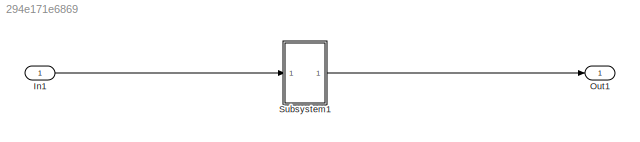
MODEL slx_294e171e6869
KIND model
CONFIG AbsTol = auto
CONFIG EnableMultiTasking = off
CONFIG FixedStep = auto
CONFIG MaxStep = auto
CONFIG MinStep = auto
CONFIG RelTol = 1e-3
CONFIG SampleTimeConstraint = Unconstrained
CONFIG Solver = FixedStepDiscrete
CONFIG SolverName = FixedStepDiscrete
CONFIG StartTime = 0.0
CONFIG StopTime = 10.0
BLOCK [Inport] In1
  OutDataTypeStr = uint8
BLOCK [Outport] Out1
  OutDataTypeStr = uint32
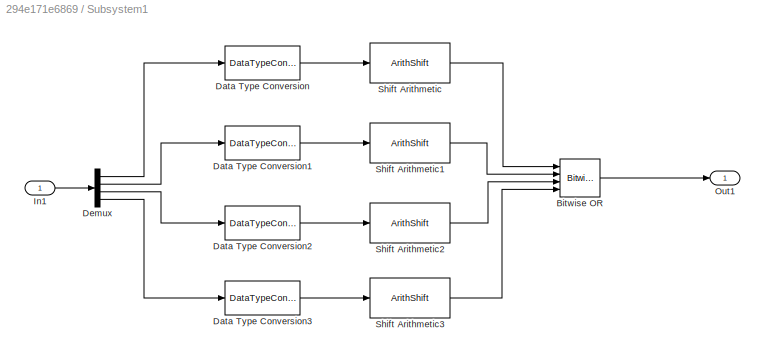
BLOCK [SubSystem] Subsystem1
  Ports = [1, 1]
  RequestExecContextInheritance = off
BLOCK [Reference] Subsystem1/Bitwise OR  REF=simulink/Logic and Bit
Operations/Bitwise
Operator
  Ports = [4, 1]
  SourceBlock = simulink/Logic and Bit\nOperations/Bitwise\nOperator
  SourceProductBaseCode = SL
  SourceType = Bitwise Operator
BLOCK [DataTypeConversion] Subsystem1/Data Type Conversion
  OutDataTypeStr = uint32
  RndMeth = Floor
  SaturateOnIntegerOverflow = off
BLOCK [DataTypeConversion] Subsystem1/Data Type Conversion1
  OutDataTypeStr = uint32
  RndMeth = Floor
  SaturateOnIntegerOverflow = off
BLOCK [DataTypeConversion] Subsystem1/Data Type Conversion2
  OutDataTypeStr = uint32
  RndMeth = Floor
  SaturateOnIntegerOverflow = off
BLOCK [DataTypeConversion] Subsystem1/Data Type Conversion3
  OutDataTypeStr = uint32
  RndMeth = Floor
  SaturateOnIntegerOverflow = off
BLOCK [Demux] Subsystem1/Demux
  Ports = [1, 4]
BLOCK [Inport] Subsystem1/In1
BLOCK [Outport] Subsystem1/Out1
BLOCK [ArithShift] Subsystem1/Shift Arithmetic
  BitShiftDirection = Left
  InputPortMap = u0
  Ports = [1, 1]
BLOCK [ArithShift] Subsystem1/Shift Arithmetic1
  BitShiftDirection = Left
  BitShiftNumber = 8
  InputPortMap = u0
  Ports = [1, 1]
BLOCK [ArithShift] Subsystem1/Shift Arithmetic2
  BitShiftDirection = Left
  BitShiftNumber = 16
  InputPortMap = u0
  Ports = [1, 1]
BLOCK [ArithShift] Subsystem1/Shift Arithmetic3
  BitShiftDirection = Left
  BitShiftNumber = 24
  InputPortMap = u0
  Ports = [1, 1]
LINE In1:1 -> Subsystem1:1
LINE Subsystem1/Bitwise OR:1 -> Subsystem1/Out1:1
LINE Subsystem1/Data Type Conversion1:1 -> Subsystem1/Shift Arithmetic1:1
LINE Subsystem1/Data Type Conversion2:1 -> Subsystem1/Shift Arithmetic2:1
LINE Subsystem1/Data Type Conversion3:1 -> Subsystem1/Shift Arithmetic3:1
LINE Subsystem1/Data Type Conversion:1 -> Subsystem1/Shift Arithmetic:1
LINE Subsystem1/Demux:1 -> Subsystem1/Data Type Conversion:1
LINE Subsystem1/Demux:2 -> Subsystem1/Data Type Conversion1:1
LINE Subsystem1/Demux:3 -> Subsystem1/Data Type Conversion2:1
LINE Subsystem1/Demux:4 -> Subsystem1/Data Type Conversion3:1
LINE Subsystem1/In1:1 -> Subsystem1/Demux:1
LINE Subsystem1/Shift Arithmetic1:1 -> Subsystem1/Bitwise OR:2
LINE Subsystem1/Shift Arithmetic2:1 -> Subsystem1/Bitwise OR:3
LINE Subsystem1/Shift Arithmetic3:1 -> Subsystem1/Bitwise OR:4
LINE Subsystem1/Shift Arithmetic:1 -> Subsystem1/Bitwise OR:1
LINE Subsystem1:1 -> Out1:1
